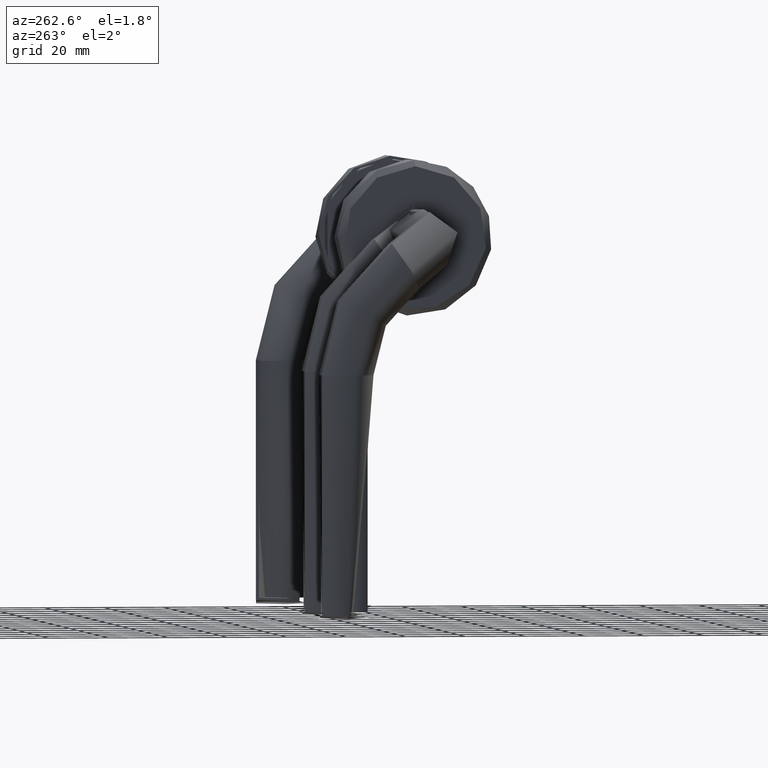
[diagram: clean part render]
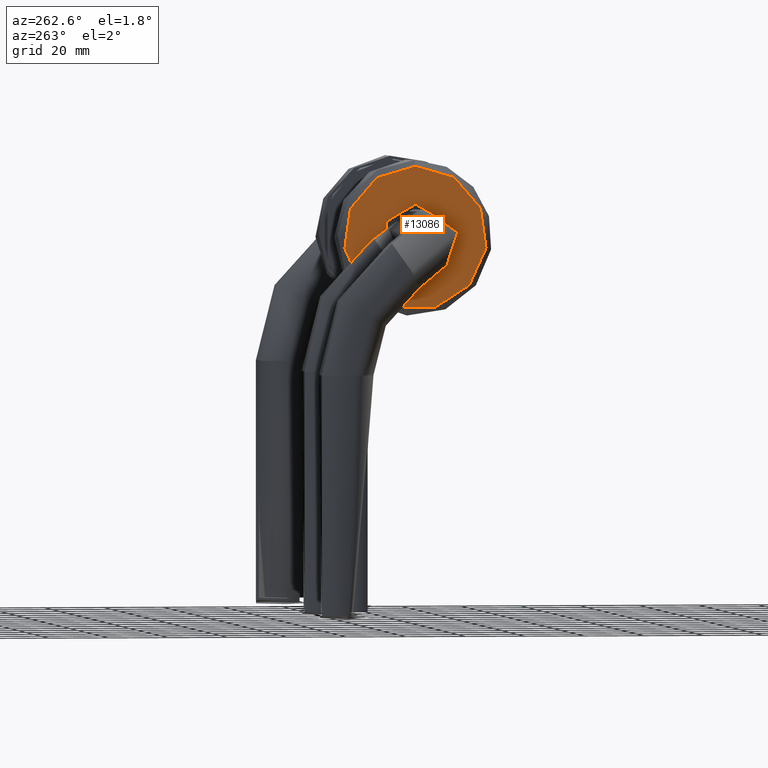
[diagram: same view with one face highlighted and labeled with its STEP entity id]
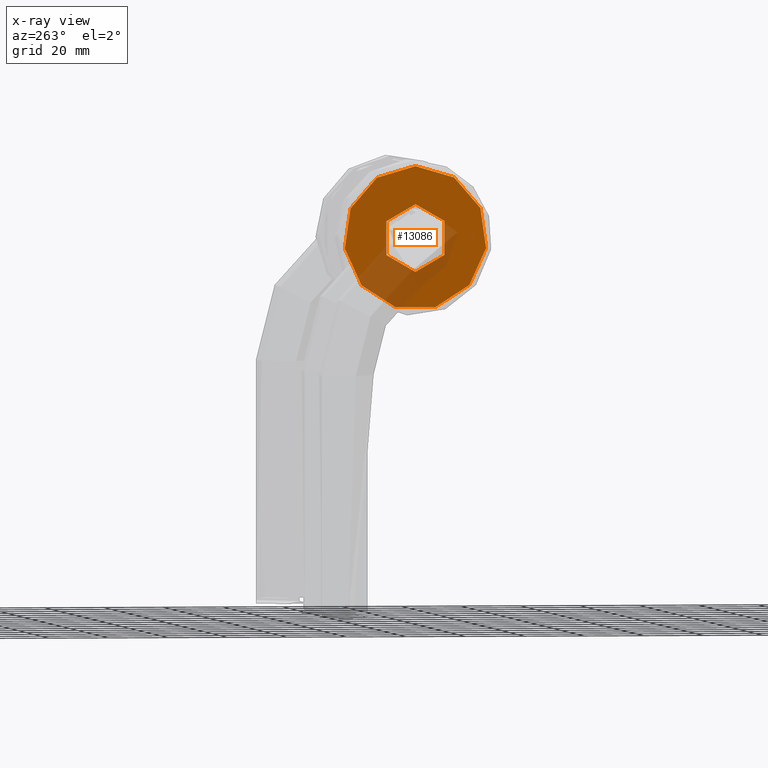
[diagram: x-ray of the same camera — body ghosted, the highlighted face saturated]
A machine part, auxiliary view. The second image highlights one B-rep face of the part: STEP entity #13086.
The next image is the same camera in x-ray: the body ghosted, the highlighted face saturated — about 23% of this face is hidden behind the body in this view.
In plain terms, the highlighted planar face has unit normal (-1, -0, 0).
Its self-contained STEP definition (entity closure, byte-faithful):
#88 = EDGE_LOOP ( 'NONE', ( #179 ) ) ;
#179 = ORIENTED_EDGE ( 'NONE', *, *, #32887, .F. ) ;
#216 = ORIENTED_EDGE ( 'NONE', *, *, #8892, .T. ) ;
#2006 = EDGE_LOOP ( 'NONE', ( #216 ) ) ;
#2540 = PLANE ( 'NONE',  #31556 ) ;
#3020 = CARTESIAN_POINT ( 'NONE',  ( 0.0000000000000000000, 0.0000000000000000000, 10.50000000000000000 ) ) ;
#5428 = DIRECTION ( 'NONE',  ( 1.000000000000000000, 0.0000000000000000000, -0.0000000000000000000 ) ) ;
#8786 = DIRECTION ( 'NONE',  ( 1.000000000000000000, 0.0000000000000000000, 0.0000000000000000000 ) ) ;
#8892 = EDGE_CURVE ( 'NONE', #30581, #30581, #8900, .T. ) ;
#8900 = CIRCLE ( 'NONE', #23036, 24.00000000000000000 ) ;
#13086 = ADVANCED_FACE ( 'NONE', ( #31011, #33252 ), #2540, .T. ) ;
#14339 = CARTESIAN_POINT ( 'NONE',  ( 0.0000000000000000000, 0.0000000000000000000, 10.50000000000000000 ) ) ;
#16690 = VERTEX_POINT ( 'NONE', #29501 ) ;
#19508 = CARTESIAN_POINT ( 'NONE',  ( 0.0000000000000000000, 0.0000000000000000000, 10.50000000000000000 ) ) ;
#19886 = CARTESIAN_POINT ( 'NONE',  ( 24.00000000000000000, 0.0000000000000000000, 10.50000000000000000 ) ) ;
#20697 = CIRCLE ( 'NONE', #20819, 11.30000000000000100 ) ;
#20819 = AXIS2_PLACEMENT_3D ( 'NONE', #19508, #28140, #25231 ) ;
#22593 = DIRECTION ( 'NONE',  ( 0.0000000000000000000, 0.0000000000000000000, 1.000000000000000000 ) ) ;
#22940 = DIRECTION ( 'NONE',  ( 0.0000000000000000000, 0.0000000000000000000, 1.000000000000000000 ) ) ;
#23036 = AXIS2_PLACEMENT_3D ( 'NONE', #3020, #22940, #8786 ) ;
#25231 = DIRECTION ( 'NONE',  ( 1.000000000000000000, 0.0000000000000000000, 0.0000000000000000000 ) ) ;
#28140 = DIRECTION ( 'NONE',  ( 0.0000000000000000000, 0.0000000000000000000, 1.000000000000000000 ) ) ;
#29501 = CARTESIAN_POINT ( 'NONE',  ( 11.30000000000000100, 0.0000000000000000000, 10.50000000000000000 ) ) ;
#30581 = VERTEX_POINT ( 'NONE', #19886 ) ;
#31011 = FACE_BOUND ( 'NONE', #88, .T. ) ;
#31556 = AXIS2_PLACEMENT_3D ( 'NONE', #14339, #22593, #5428 ) ;
#32887 = EDGE_CURVE ( 'NONE', #16690, #16690, #20697, .T. ) ;
#33252 = FACE_OUTER_BOUND ( 'NONE', #2006, .T. ) ;